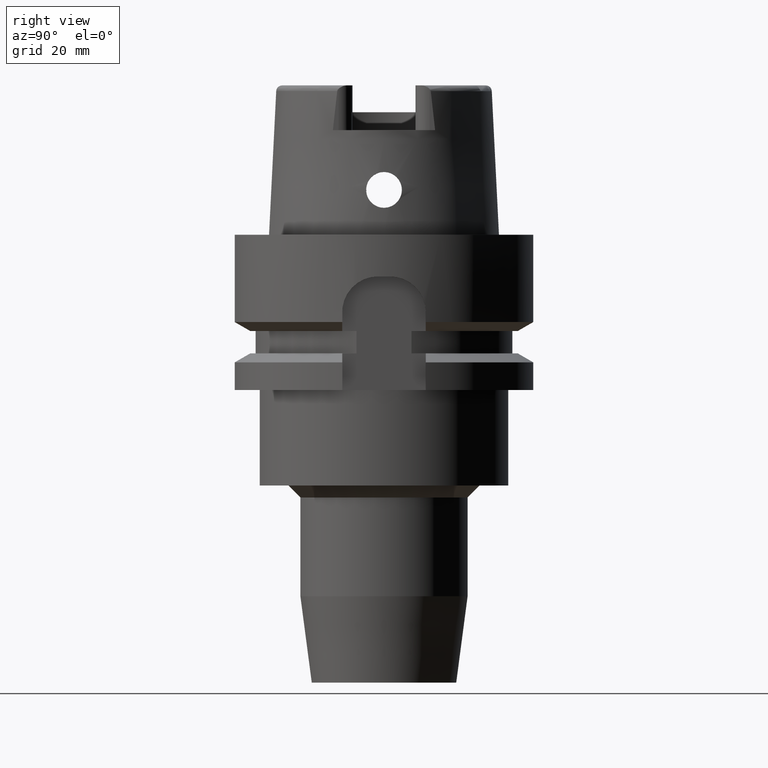
[diagram: clean part render]
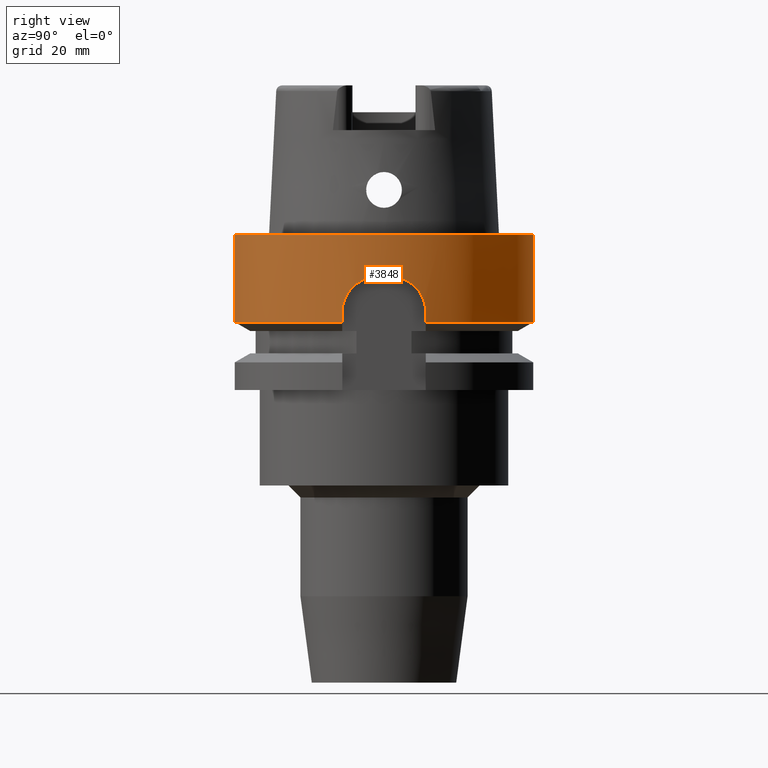
[diagram: same view with one face highlighted and labeled with its STEP entity id]
A machine part, right view. The second image highlights one B-rep face of the part: STEP entity #3848.
In plain terms, the highlighted cylindrical surface (partial cylindrical patch) has radius 25 mm, axis along (0, 0, 1).
Its self-contained STEP definition (entity closure, byte-faithful):
#1674=CARTESIAN_POINT('',(2.399999968299E1,7.000001086906E0,-1.462249198432E1));
#1679=CARTESIAN_POINT('',(0.E0,0.E0,-1.462250092524E1));
#1680=DIRECTION('',(0.E0,0.E0,1.E0));
#1681=DIRECTION('',(9.6E-1,2.8E-1,0.E0));
#1682=AXIS2_PLACEMENT_3D('',#1679,#1680,#1681);
#1709=CARTESIAN_POINT('',(2.497999199359E1,-1.E0,-7.E0));
#1710=CARTESIAN_POINT('',(2.496441893445E1,-1.389014892726E0,-7.E0));
#1711=CARTESIAN_POINT('',(2.491574662460E1,-2.156287227567E0,
-7.073986468457E0));
#1712=CARTESIAN_POINT('',(2.479026911528E1,-3.295625582985E0,
-7.413610416039E0));
#1713=CARTESIAN_POINT('',(2.462507271473E1,-4.352482246815E0,
-7.976687898253E0));
#1714=CARTESIAN_POINT('',(2.444334359142E1,-5.269312845555E0,
-8.729635145229E0));
#1715=CARTESIAN_POINT('',(2.426765911691E1,-6.019484054685E0,
-9.642273219344E0));
#1716=CARTESIAN_POINT('',(2.411884318651E1,-6.584363667703E0,
-1.069885865336E1));
#1717=CARTESIAN_POINT('',(2.402186308727E1,-6.925693442532E0,
-1.184122249504E1));
#1718=CARTESIAN_POINT('',(2.4E1,-7.E0,-1.260978720083E1));
#1719=CARTESIAN_POINT('',(2.4E1,-7.E0,-1.3E1));
#1724=DIRECTION('',(3.927123478823E-8,1.346433745911E-7,-1.E0));
#1725=VECTOR('',#1724,1.622502722254E0);
#1726=CARTESIAN_POINT('',(2.4E1,-7.E0,-1.3E1));
#1727=LINE('',#1726,#1725);
#1731=DIRECTION('',(0.E0,2.721175632404E-14,-1.E0));
#1732=VECTOR('',#1731,1.462250092524E1);
#1733=CARTESIAN_POINT('',(0.E0,2.5E1,0.E0));
#1734=LINE('',#1733,#1732);
#1738=DIRECTION('',(1.953870424612E-7,-6.698991322228E-7,9.999999999998E-1));
#1739=VECTOR('',#1738,1.622491984323E0);
#1740=CARTESIAN_POINT('',(2.399999968299E1,7.000001086906E0,-1.462249198432E1));
#1741=LINE('',#1740,#1739);
#1745=CARTESIAN_POINT('',(2.4E1,7.E0,-1.3E1));
#1746=CARTESIAN_POINT('',(2.4E1,7.E0,-1.261389642347E1));
#1747=CARTESIAN_POINT('',(2.402142514719E1,6.927163058637E0,-1.185260726803E1));
#1748=CARTESIAN_POINT('',(2.411661848220E1,6.592329016020E0,-1.071988155079E1));
#1749=CARTESIAN_POINT('',(2.426360981341E1,6.035450327109E0,-9.666995762764E0));
#1750=CARTESIAN_POINT('',(2.443801094178E1,5.293624515873E0,-8.754339980597E0));
#1751=CARTESIAN_POINT('',(2.461992037320E1,4.381323366985E0,-7.995922210403E0));
#1752=CARTESIAN_POINT('',(2.478651325995E1,3.324295670096E0,-7.424934893214E0));
#1753=CARTESIAN_POINT('',(2.491431581788E1,2.175249119582E0,-7.076731809467E0));
#1754=CARTESIAN_POINT('',(2.496412855379E1,1.396268599301E0,-7.E0));
#1755=CARTESIAN_POINT('',(2.497999199359E1,1.E0,-7.E0));
#1774=CARTESIAN_POINT('',(0.E0,0.E0,-7.E0));
#1775=DIRECTION('',(0.E0,0.E0,1.E0));
#1776=DIRECTION('',(9.991996797437E-1,-4.E-2,0.E0));
#1777=AXIS2_PLACEMENT_3D('',#1774,#1775,#1776);
#1878=DIRECTION('',(0.E0,-2.721175632404E-14,-1.E0));
#1879=VECTOR('',#1878,1.462250092524E1);
#1880=CARTESIAN_POINT('',(0.E0,-2.5E1,0.E0));
#1881=LINE('',#1880,#1879);
#1934=CARTESIAN_POINT('',(0.E0,0.E0,0.E0));
#1935=DIRECTION('',(0.E0,0.E0,-1.E0));
#1936=DIRECTION('',(0.E0,1.E0,0.E0));
#1937=AXIS2_PLACEMENT_3D('',#1934,#1935,#1936);
#1976=CARTESIAN_POINT('',(0.E0,0.E0,-1.462250092524E1));
#1977=DIRECTION('',(0.E0,0.E0,1.E0));
#1978=DIRECTION('',(0.E0,-1.E0,0.E0));
#1979=AXIS2_PLACEMENT_3D('',#1976,#1977,#1978);
#1984=CARTESIAN_POINT('',(2.400000006372E1,-6.999999781541E0,
-1.462250272225E1));
#2565=VERTEX_POINT('',#1984);
#2566=CARTESIAN_POINT('',(2.4E1,-7.E0,-1.3E1));
#2567=VERTEX_POINT('',#2566);
#2576=CARTESIAN_POINT('',(0.E0,-2.5E1,-1.462250092524E1));
#2577=VERTEX_POINT('',#2576);
#2578=VERTEX_POINT('',#1674);
#2579=CARTESIAN_POINT('',(0.E0,2.5E1,-1.462250092524E1));
#2580=VERTEX_POINT('',#2579);
#2582=CARTESIAN_POINT('',(0.E0,2.5E1,0.E0));
#2583=VERTEX_POINT('',#2582);
#2584=CARTESIAN_POINT('',(0.E0,-2.5E1,0.E0));
#2585=VERTEX_POINT('',#2584);
#2588=VERTEX_POINT('',#1709);
#2589=CARTESIAN_POINT('',(2.4E1,7.E0,-1.3E1));
#2590=VERTEX_POINT('',#2589);
#2591=VERTEX_POINT('',#1755);
#3824=CARTESIAN_POINT('',(0.E0,0.E0,-8.E1));
#3825=DIRECTION('',(0.E0,0.E0,1.E0));
#3826=DIRECTION('',(0.E0,1.E0,0.E0));
#3827=AXIS2_PLACEMENT_3D('',#3824,#3825,#3826);
#3828=CYLINDRICAL_SURFACE('',#3827,2.5E1);
#3830=ORIENTED_EDGE('',*,*,#3829,.T.);
#3832=ORIENTED_EDGE('',*,*,#3831,.T.);
#3834=ORIENTED_EDGE('',*,*,#3833,.F.);
#3836=ORIENTED_EDGE('',*,*,#3835,.F.);
#3838=ORIENTED_EDGE('',*,*,#3837,.F.);
#3840=ORIENTED_EDGE('',*,*,#3839,.T.);
#3841=ORIENTED_EDGE('',*,*,#3788,.F.);
#3842=ORIENTED_EDGE('',*,*,#3804,.T.);
#3843=ORIENTED_EDGE('',*,*,#3815,.T.);
#3845=ORIENTED_EDGE('',*,*,#3844,.F.);
#3846=EDGE_LOOP('',(#3830,#3832,#3834,#3836,#3838,#3840,#3841,#3842,#3843,
#3845));
#3847=FACE_OUTER_BOUND('',#3846,.F.);
#1683=CIRCLE('',#1682,2.5E1);
#1720=B_SPLINE_CURVE_WITH_KNOTS('',3,(#1709,#1710,#1711,#1712,#1713,#1714,#1715,
#1716,#1717,#1718,#1719),.UNSPECIFIED.,.F.,.F.,(4,1,1,1,1,1,1,1,4),(0.E0,
1.25E-1,2.5E-1,3.75E-1,5.E-1,6.25E-1,7.5E-1,8.75E-1,1.E0),.UNSPECIFIED.);
#1756=B_SPLINE_CURVE_WITH_KNOTS('',3,(#1745,#1746,#1747,#1748,#1749,#1750,#1751,
#1752,#1753,#1754,#1755),.UNSPECIFIED.,.F.,.F.,(4,1,1,1,1,1,1,1,4),(0.E0,
1.25E-1,2.5E-1,3.75E-1,5.E-1,6.25E-1,7.5E-1,8.75E-1,1.E0),.UNSPECIFIED.);
#1778=CIRCLE('',#1777,2.5E1);
#1938=CIRCLE('',#1937,2.5E1);
#1980=CIRCLE('',#1979,2.5E1);
#3788=EDGE_CURVE('',#2578,#2580,#1683,.T.);
#3804=EDGE_CURVE('',#2578,#2590,#1741,.T.);
#3815=EDGE_CURVE('',#2590,#2591,#1756,.T.);
#3829=EDGE_CURVE('',#2588,#2567,#1720,.T.);
#3831=EDGE_CURVE('',#2567,#2565,#1727,.T.);
#3833=EDGE_CURVE('',#2577,#2565,#1980,.T.);
#3835=EDGE_CURVE('',#2585,#2577,#1881,.T.);
#3837=EDGE_CURVE('',#2583,#2585,#1938,.T.);
#3839=EDGE_CURVE('',#2583,#2580,#1734,.T.);
#3844=EDGE_CURVE('',#2588,#2591,#1778,.T.);
#3848=ADVANCED_FACE('',(#3847),#3828,.T.);